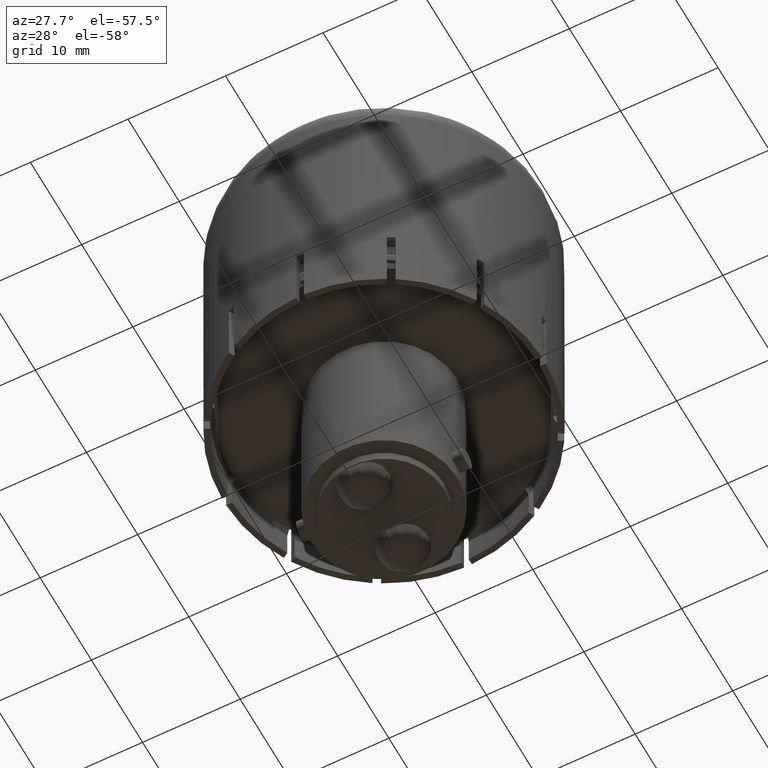
[diagram: clean part render]
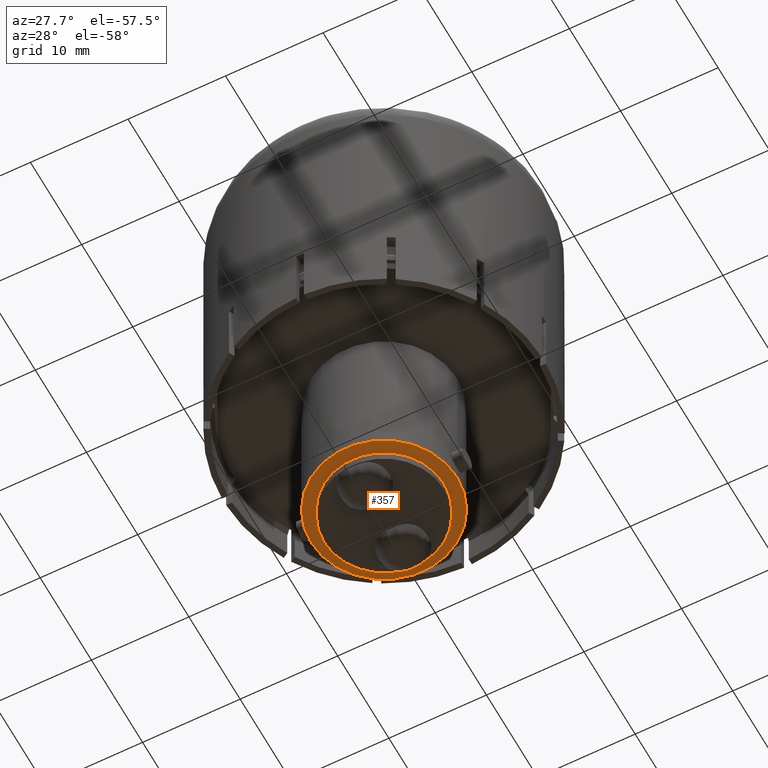
[diagram: same view with one face highlighted and labeled with its STEP entity id]
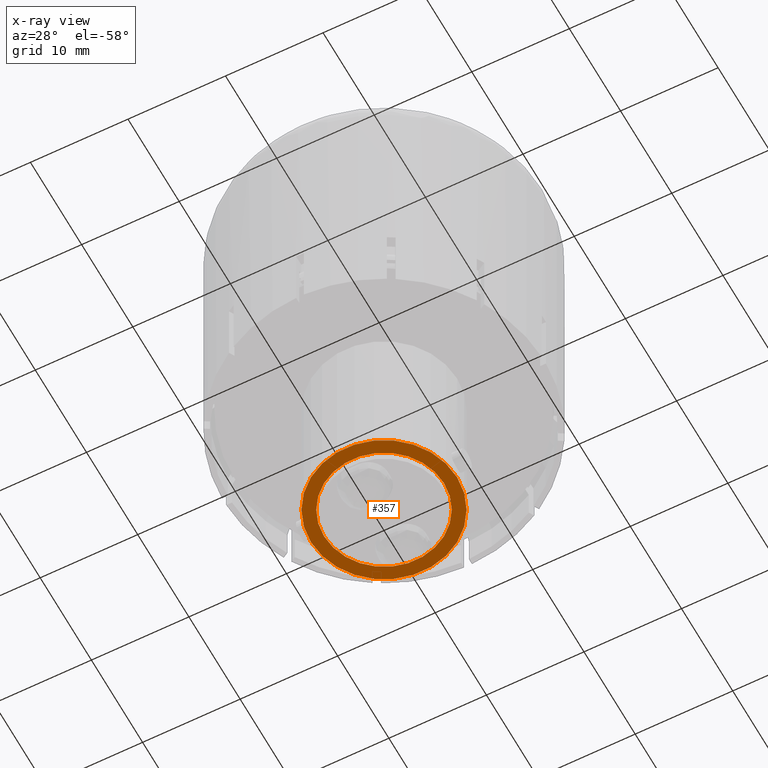
[diagram: x-ray of the same camera — body ghosted, the highlighted face saturated]
A machine part, auxiliary view. The second image highlights one B-rep face of the part: STEP entity #357.
The next image is the same camera in x-ray: the body ghosted, the highlighted face saturated — about 0% of this face is hidden behind the body in this view.
In plain terms, the highlighted planar face has unit normal (0, 0, 1).
Its self-contained STEP definition (entity closure, byte-faithful):
#74=FACE_BOUND('',#777,.T.);
#75=FACE_BOUND('',#778,.T.);
#173=PLANE('',#3998);
#357=ADVANCED_FACE('',(#74,#75),#173,.F.);
#777=EDGE_LOOP('',(#1905));
#778=EDGE_LOOP('',(#1906));
#1006=CIRCLE('',#3994,6.15);
#1008=CIRCLE('',#3997,7.5);
#1905=ORIENTED_EDGE('',*,*,#2988,.F.);
#1906=ORIENTED_EDGE('',*,*,#2986,.T.);
#2471=VERTEX_POINT('',#6428);
#2473=VERTEX_POINT('',#6433);
#2986=EDGE_CURVE('',#2471,#2471,#1006,.T.);
#2988=EDGE_CURVE('',#2473,#2473,#1008,.T.);
#3994=AXIS2_PLACEMENT_3D('',#6427,#5050,#5051);
#3997=AXIS2_PLACEMENT_3D('',#6432,#5056,#5057);
#3998=AXIS2_PLACEMENT_3D('',#6434,#5058,#5059);
#5050=DIRECTION('',(0.,0.,1.));
#5051=DIRECTION('',(1.,0.,0.));
#5056=DIRECTION('',(0.,0.,1.));
#5057=DIRECTION('',(1.,0.,0.));
#5058=DIRECTION('',(0.,0.,1.));
#5059=DIRECTION('',(-1.,0.,0.));
#6427=CARTESIAN_POINT('',(0.,0.,1.));
#6428=CARTESIAN_POINT('',(6.15,0.,1.));
#6432=CARTESIAN_POINT('',(0.,0.,1.));
#6433=CARTESIAN_POINT('',(7.5,0.,1.));
#6434=CARTESIAN_POINT('',(0.,-6.15,1.));